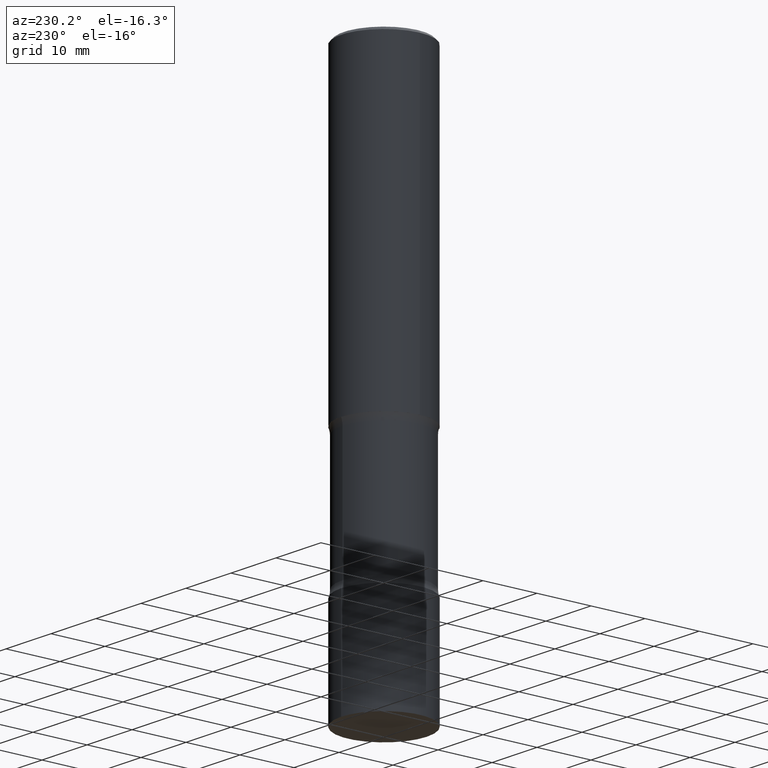
[diagram: clean part render]
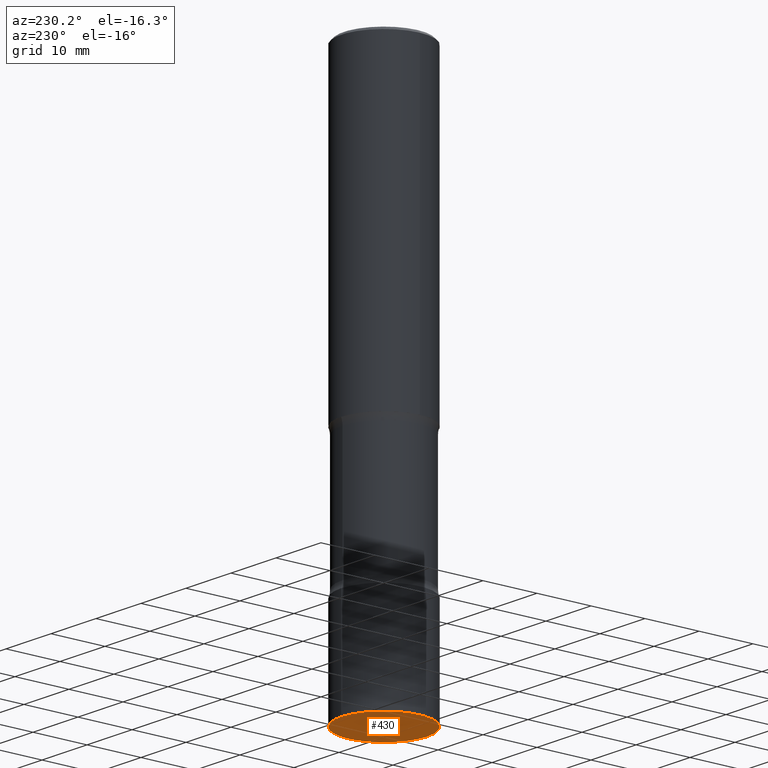
[diagram: same view with one face highlighted and labeled with its STEP entity id]
A machine part, auxiliary view. The second image highlights one B-rep face of the part: STEP entity #430.
In plain terms, the highlighted planar face has unit normal (0, -0, -1).
Its self-contained STEP definition (entity closure, byte-faithful):
#11 = DIRECTION ( 'NONE',  ( -6.982962677686265133E-15, -1.000000000000000000, 3.496765431890254947E-15 ) ) ;
#17 = DIRECTION ( 'NONE',  ( -2.445033351893169322E-29, 3.492104934173762061E-15, 1.000000000000000000 ) ) ;
#31 = CARTESIAN_POINT ( 'NONE',  ( 9.780133407572677289E-29, -1.396841973669504667E-14, -4.000000000000000000 ) ) ;
#48 = VERTEX_POINT ( 'NONE', #414 ) ;
#50 = EDGE_CURVE ( 'NONE', #48, #388, #305, .T. ) ;
#57 = EDGE_LOOP ( 'NONE', ( #339, #91 ) ) ;
#58 = DIRECTION ( 'NONE',  ( 6.982962677686265922E-15, 1.000000000000000000, -3.492104934173762061E-15 ) ) ;
#59 = CARTESIAN_POINT ( 'NONE',  ( 9.780133407572677289E-29, -1.396841973669504667E-14, -4.000000000000000000 ) ) ;
#67 = CIRCLE ( 'NONE', #173, 0.3125000000000001665 ) ;
#91 = ORIENTED_EDGE ( 'NONE', *, *, #258, .F. ) ;
#97 = CARTESIAN_POINT ( 'NONE',  ( 9.781875224740546387E-29, -1.396592535537258233E-14, -4.000000000000000000 ) ) ;
#144 = PLANE ( 'NONE',  #297 ) ;
#151 = AXIS2_PLACEMENT_3D ( 'NONE', #31, #160, #337 ) ;
#160 = DIRECTION ( 'NONE',  ( -2.445033351893169322E-29, 3.492104934173762061E-15, 1.000000000000000000 ) ) ;
#173 = AXIS2_PLACEMENT_3D ( 'NONE', #59, #17, #11 ) ;
#258 = EDGE_CURVE ( 'NONE', #388, #48, #67, .T. ) ;
#297 = AXIS2_PLACEMENT_3D ( 'NONE', #97, #402, #58 ) ;
#305 = CIRCLE ( 'NONE', #151, 0.3125000000000001665 ) ;
#337 = DIRECTION ( 'NONE',  ( -6.982962677686265133E-15, -1.000000000000000000, 3.496765431890254947E-15 ) ) ;
#339 = ORIENTED_EDGE ( 'NONE', *, *, #50, .F. ) ;
#386 = CARTESIAN_POINT ( 'NONE',  ( 2.220446049250402617E-15, 0.3124999999999861222, -4.000000000000000888 ) ) ;
#388 = VERTEX_POINT ( 'NONE', #386 ) ;
#402 = DIRECTION ( 'NONE',  ( 2.445033351893168762E-29, -3.492104934173762061E-15, -1.000000000000000000 ) ) ;
#414 = CARTESIAN_POINT ( 'NONE',  ( -2.182175836776861317E-15, -0.3125000000000141553, -3.999999999999998668 ) ) ;
#430 = ADVANCED_FACE ( 'NONE', ( #465 ), #144, .T. ) ;
#465 = FACE_OUTER_BOUND ( 'NONE', #57, .T. ) ;